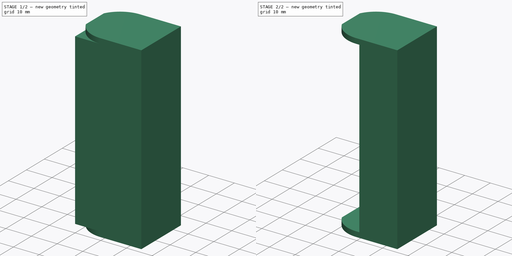
[diagram: build sequence overview — one tinted view per stage of 2, left to right]
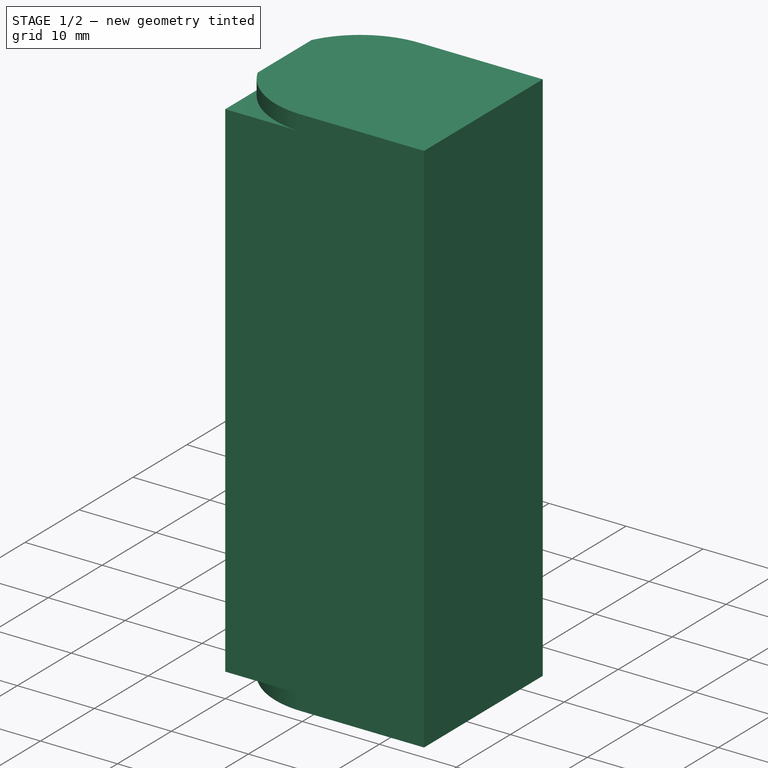
[diagram: stage 1 of 2 — iso view after this stage's code; geometry added in this stage tinted green]
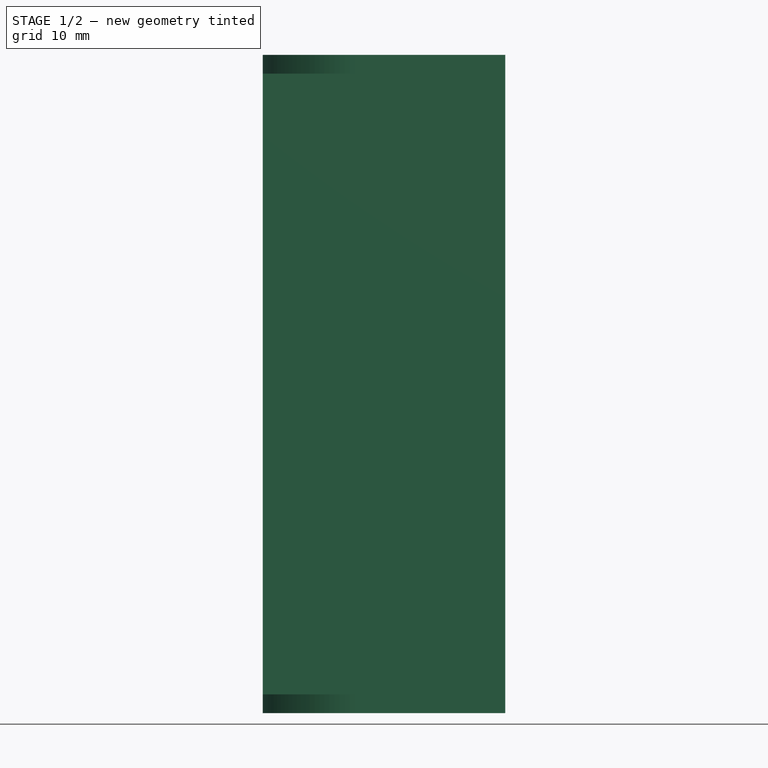
[diagram: stage 1 of 2 — front view after this stage's code; geometry added in this stage tinted green]
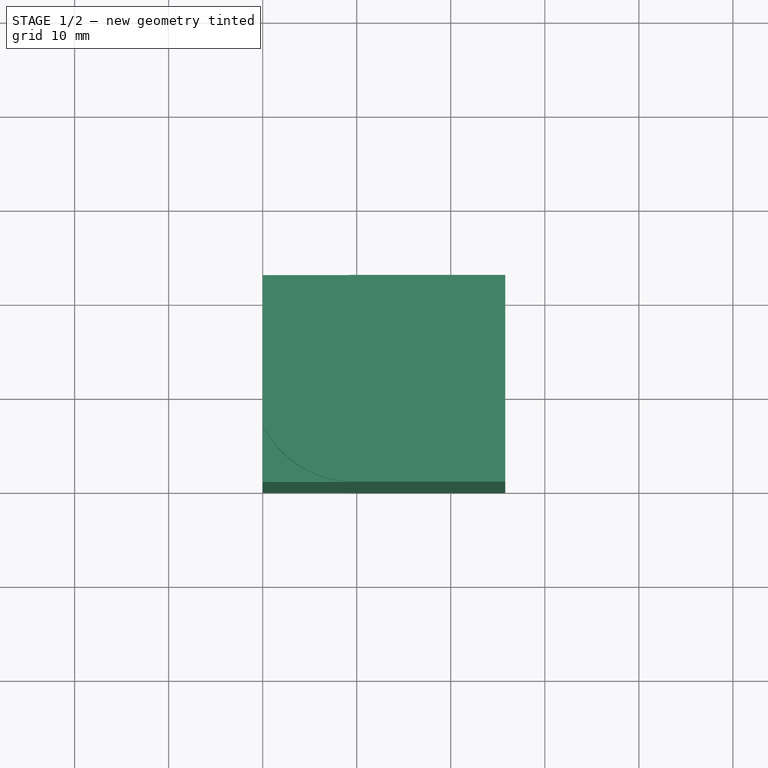
[diagram: stage 1 of 2 — top view after this stage's code; geometry added in this stage tinted green]
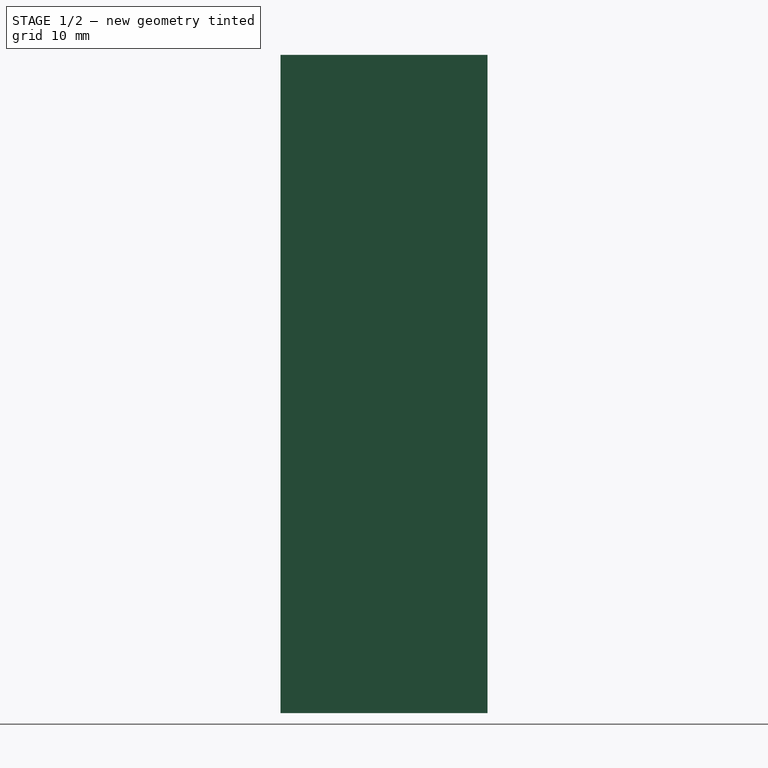
[diagram: stage 1 of 2 — right view after this stage's code; geometry added in this stage tinted green]
FCSTD DOCUMENT
Label: BatterySledV2
objects: Sketcher::SketchObject×2, PartDesign::Pad×2, Part::Cut×1
note: 7 computed .brp shape members not serialized (recipe doc carries the construction recipe); baked Part::Feature solids carry a one-line shape summary decoded from their .brp

FEATURE [Sketcher::SketchObject] Sketch
  sketch-geometry (9):
    g0: LineSegment [constr] StartX=9.79796 StartY=0 StartZ=0 EndX=9.79796 EndY=11 EndZ=0
    g1: LineSegment [constr] StartX=9.79796 StartY=11 StartZ=0 EndX=9.79796 EndY=22 EndZ=0
    g2: LineSegment StartX=9.79796 StartY=22 StartZ=0 EndX=25.798 EndY=22 EndZ=0
    g3: LineSegment StartX=25.798 StartY=0 StartZ=0 EndX=9.79796 EndY=0 EndZ=0
    g4: LineSegment StartX=0 StartY=16 StartZ=0 EndX=0 EndY=6 EndZ=0
    g5: ArcOfCircle CenterX=9.79796 CenterY=11 CenterZ=0 NormalX=0 NormalY=0 NormalZ=1 Radius=11 StartAngle=1.5708 EndAngle=2.66973
    g6: ArcOfCircle CenterX=9.79796 CenterY=11 CenterZ=0 NormalX=0 NormalY=0 NormalZ=1 Radius=11 StartAngle=3.61345 EndAngle=4.71239
    g7: LineSegment StartX=25.798 StartY=22 StartZ=0 EndX=25.798 EndY=0 EndZ=0
    g8: Circle [constr] CenterX=9.79796 CenterY=11 CenterZ=0 NormalX=0 NormalY=0 NormalZ=1 Radius=9
  constraints (25):
    c: Vertical(g0)
    c: Coincident(g0,g1)
    c: Vertical(g1)
    c: Coincident(g1,g2)
    c: Horizontal(g2)
    c: Horizontal(g3)
    c: Coincident(g3,g0)
    c: Vertical(g4)
    c: Coincident(g6,g5)
    c: Coincident(g5,g0)
    c: Coincident(g6,g0)
    c: Coincident(g5,g1)
    c: Coincident(g5,g4)
    c: Coincident(g4,g6)
    c: Equal(g0,g1)
    c: DistanceY(g1,g0) = -22
    c: DistanceX(g1,g2) = 16
    c: DistanceY(g4,g4) = -10
    c: DistanceY(g0) = 0
    c: DistanceX(g4) = 0
    c: Vertical(g7)
    c: Coincident(g7,g3)
    c: Coincident(g7,g2)
    c: Coincident(g8,g0)
    c: Radius(g8) = 9
FEATURE [PartDesign::Pad] Pad
  Length = 70
  MirroredExtent = false
  Sketch = -> Sketch
FEATURE [Sketcher::SketchObject] Sketch001
  sketch-geometry (8):
    g0: LineSegment StartX=0 StartY=0 StartZ=0 EndX=0 EndY=22 EndZ=0
    g1: LineSegment [constr] StartX=11 StartY=20 StartZ=0 EndX=11 EndY=11 EndZ=0
    g2: LineSegment [constr] StartX=11 StartY=11 StartZ=0 EndX=11 EndY=2 EndZ=0
    g3: ArcOfCircle CenterX=11 CenterY=11 CenterZ=0 NormalX=0 NormalY=0 NormalZ=1 Radius=9 StartAngle=4.71239 EndAngle=7.85398
    g4: LineSegment StartX=0 StartY=22 StartZ=0 EndX=11 EndY=22 EndZ=0
    g5: LineSegment StartX=11 StartY=22 StartZ=0 EndX=11 EndY=20 EndZ=0
    g6: LineSegment StartX=11 StartY=2 StartZ=0 EndX=11 EndY=0 EndZ=0
    g7: LineSegment StartX=11 StartY=0 StartZ=0 EndX=0 EndY=0 EndZ=0
  constraints (23):
    c: Vertical(g0)
    c: Vertical(g1)
    c: Coincident(g1,g2)
    c: Vertical(g2)
    c: Coincident(g3,g1)
    c: Horizontal(g4)
    c: Coincident(g4,g5)
    c: Vertical(g5)
    c: Coincident(g6,g7)
    c: Horizontal(g7)
    c: Vertical(g6)
    c: Coincident(g6,g2)
    c: Coincident(g7,g0)
    c: Coincident(g3,g2)
    c: Coincident(g1,g5)
    c: Coincident(g4,g0)
    c: DistanceY(g0) = 22
    c: DistanceY(g5) = -2
    c: DistanceY(g6) = -2
    c: DistanceX(g0) = 0
    c: DistanceY(g0) = 0
    c: DistanceX(g7) = -11
    c: Coincident(g3,g1)
FEATURE [PartDesign::Pad] Pad001
  Length = 66
  MirroredExtent = false
  Placement = pos=(0,0,2) rot=(0,0,1;0rad)
  Sketch = -> Sketch001
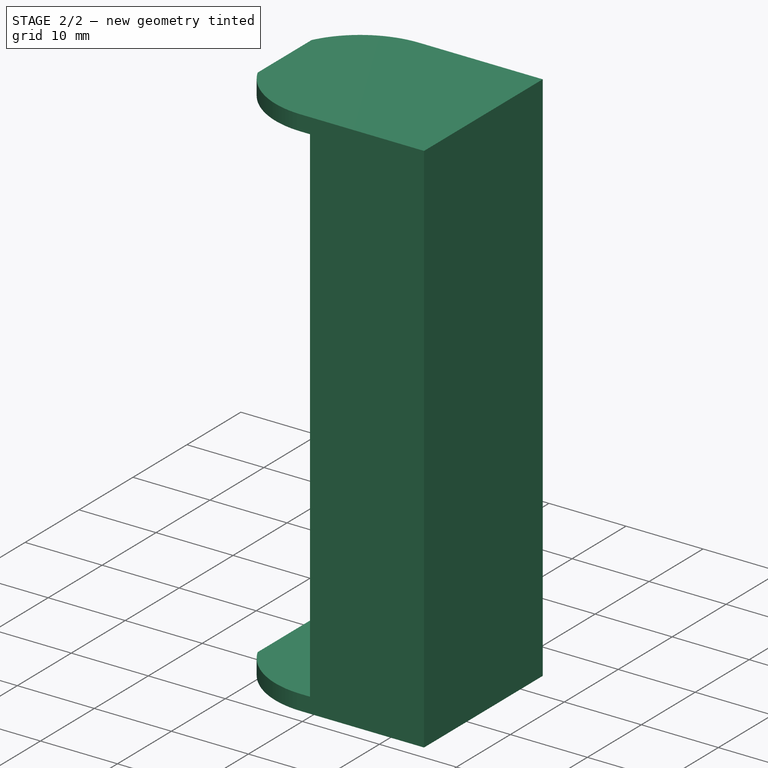
[diagram: stage 2 of 2 — iso view after this stage's code; geometry added in this stage tinted green]
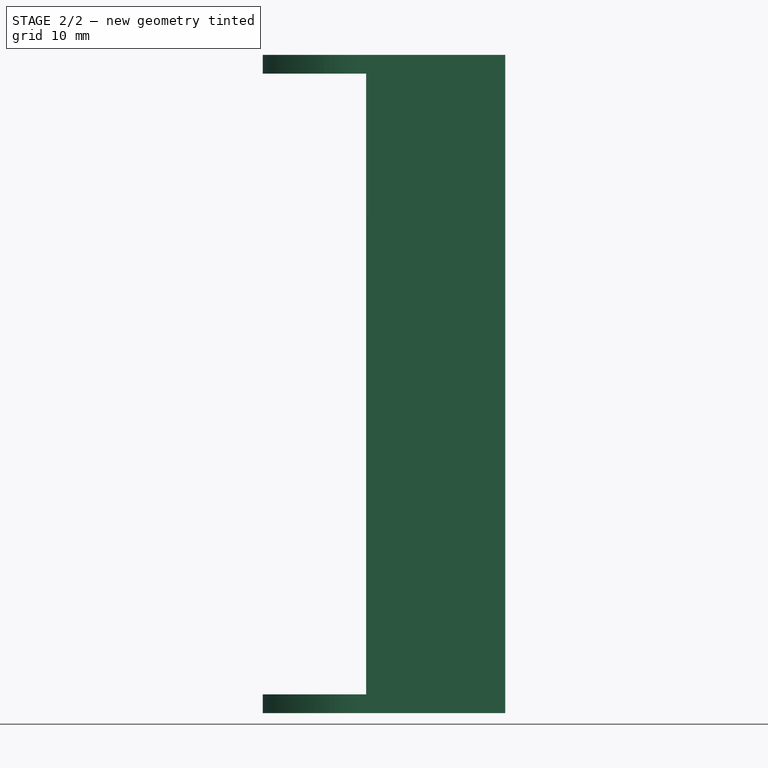
[diagram: stage 2 of 2 — front view after this stage's code; geometry added in this stage tinted green]
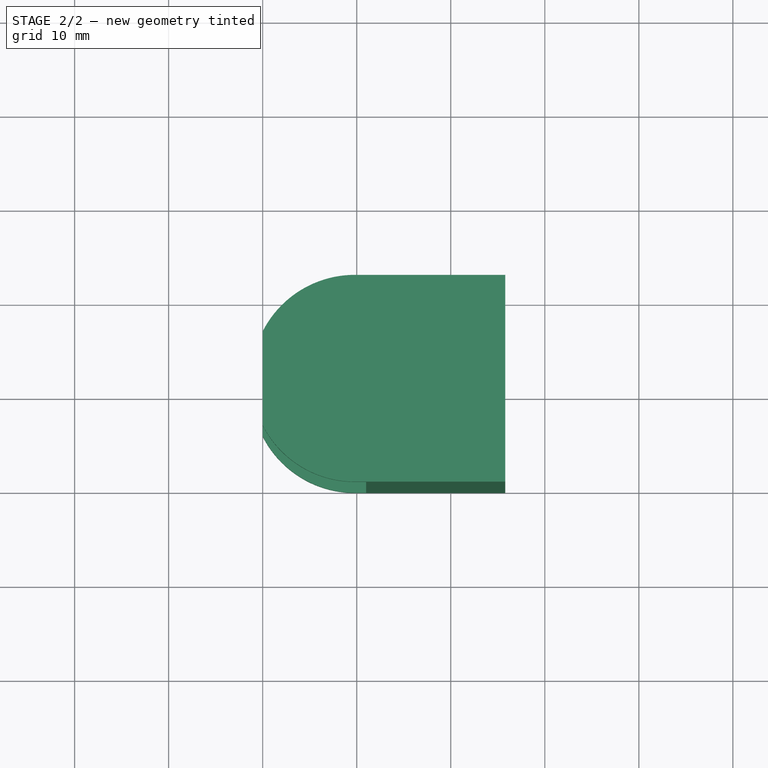
[diagram: stage 2 of 2 — top view after this stage's code; geometry added in this stage tinted green]
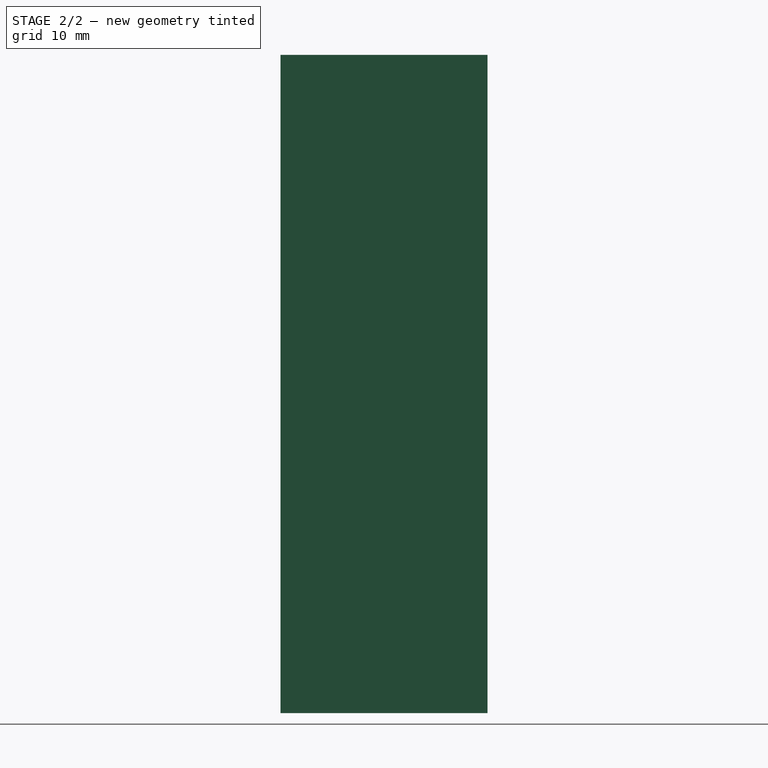
[diagram: stage 2 of 2 — right view after this stage's code; geometry added in this stage tinted green]
FEATURE [Part::Cut] Cut
  Base = -> Pad
  Tool = -> Pad001
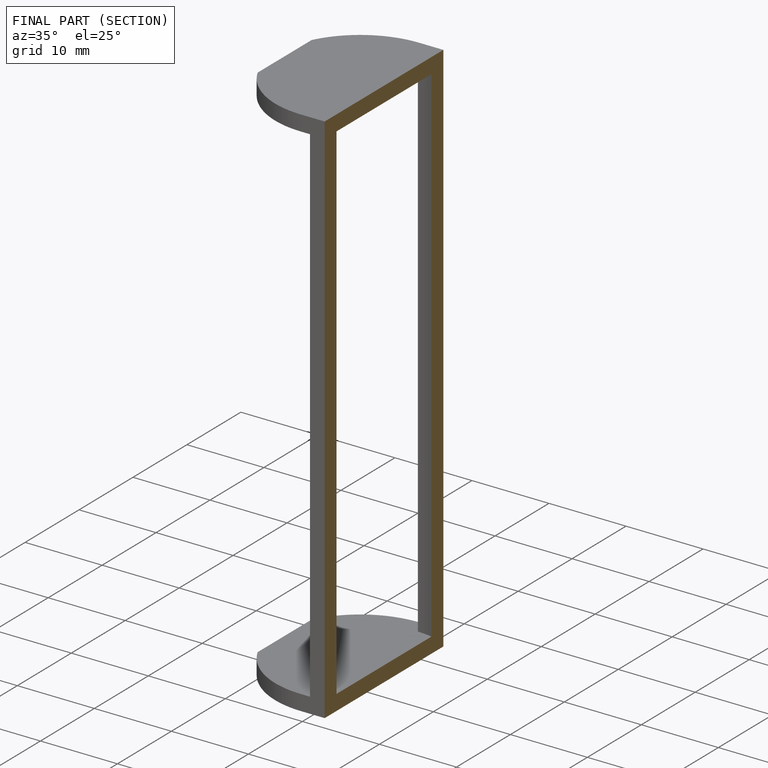
[diagram: finished part — half-section view (interior)]
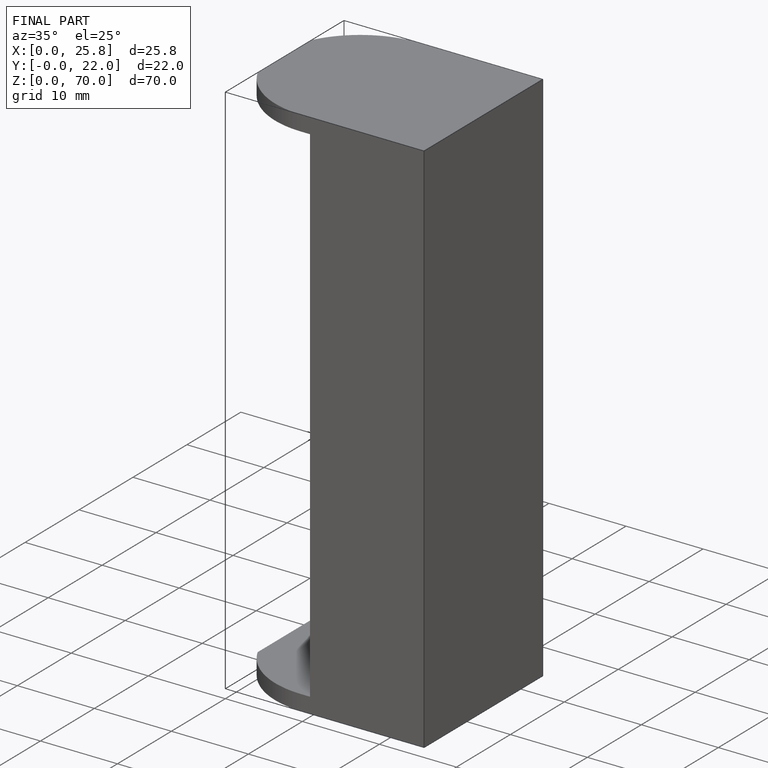
[diagram: finished part — iso view with bounding-box wireframe]
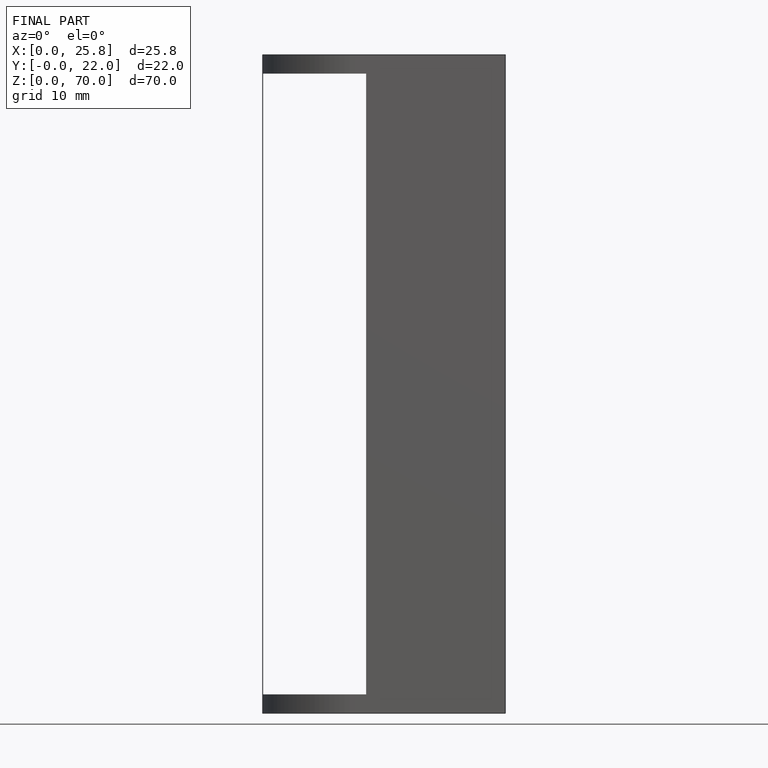
[diagram: finished part — front view with bounding-box wireframe]
